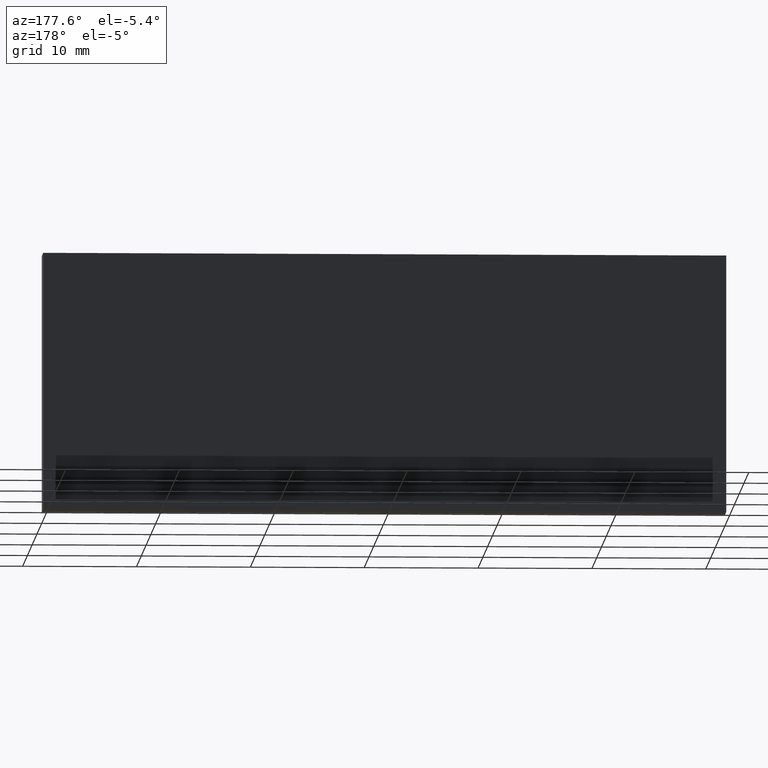
[diagram: clean part render]
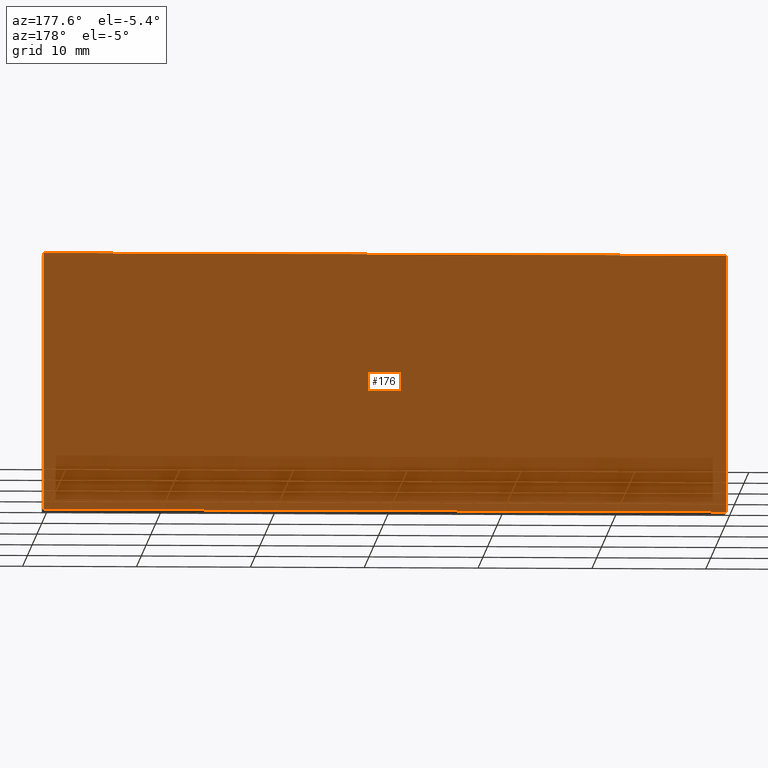
[diagram: same view with one face highlighted and labeled with its STEP entity id]
A machine part, auxiliary view. The second image highlights one B-rep face of the part: STEP entity #176.
In plain terms, the highlighted planar face has unit normal (-0, 1, 0).
Its self-contained STEP definition (entity closure, byte-faithful):
#4 = CARTESIAN_POINT ( 'NONE',  ( 30.00000000000000000, 3.000000000000000000, -11.29999999999999900 ) ) ;
#6 = VERTEX_POINT ( 'NONE', #4 ) ;
#7 = VERTEX_POINT ( 'NONE', #18 ) ;
#10 = CARTESIAN_POINT ( 'NONE',  ( 30.00000000000000000, 3.000000000000000000, 11.29999999999999900 ) ) ;
#11 = CARTESIAN_POINT ( 'NONE',  ( 30.00000000000000000, 3.000000000000000000, -11.29999999999999900 ) ) ;
#16 = VERTEX_POINT ( 'NONE', #17 ) ;
#17 = CARTESIAN_POINT ( 'NONE',  ( -30.00000000000000000, 3.000000000000000000, 11.29999999999999900 ) ) ;
#18 = CARTESIAN_POINT ( 'NONE',  ( -30.00000000000000000, 3.000000000000000000, -11.29999999999999900 ) ) ;
#24 = VERTEX_POINT ( 'NONE', #10 ) ;
#37 = LINE ( 'NONE', #11, #55 ) ;
#51 = FACE_OUTER_BOUND ( 'NONE', #118, .T. ) ;
#52 = LINE ( 'NONE', #233, #53 ) ;
#53 = VECTOR ( 'NONE', #207, 1000.000000000000000 ) ;
#55 = VECTOR ( 'NONE', #214, 1000.000000000000000 ) ;
#56 = LINE ( 'NONE', #212, #96 ) ;
#63 = ORIENTED_EDGE ( 'NONE', *, *, #153, .T. ) ;
#65 = ORIENTED_EDGE ( 'NONE', *, *, #156, .T. ) ;
#68 = ORIENTED_EDGE ( 'NONE', *, *, #160, .T. ) ;
#74 = LINE ( 'NONE', #217, #75 ) ;
#75 = VECTOR ( 'NONE', #215, 1000.000000000000000 ) ;
#96 = VECTOR ( 'NONE', #201, 1000.000000000000000 ) ;
#113 = ORIENTED_EDGE ( 'NONE', *, *, #142, .T. ) ;
#118 = EDGE_LOOP ( 'NONE', ( #63, #113, #68, #65 ) ) ;
#140 = AXIS2_PLACEMENT_3D ( 'NONE', #202, #203, #246 ) ;
#142 = EDGE_CURVE ( 'NONE', #6, #7, #37, .T. ) ;
#153 = EDGE_CURVE ( 'NONE', #24, #6, #52, .T. ) ;
#156 = EDGE_CURVE ( 'NONE', #16, #24, #74, .T. ) ;
#160 = EDGE_CURVE ( 'NONE', #7, #16, #56, .T. ) ;
#176 = ADVANCED_FACE ( 'NONE', ( #51 ), #192, .T. ) ;
#192 = PLANE ( 'NONE',  #140 ) ;
#201 = DIRECTION ( 'NONE',  ( -0.0000000000000000000, -0.0000000000000000000, 1.000000000000000000 ) ) ;
#202 = CARTESIAN_POINT ( 'NONE',  ( 0.0000000000000000000, 3.000000000000000000, 0.0000000000000000000 ) ) ;
#203 = DIRECTION ( 'NONE',  ( -0.0000000000000000000, 1.000000000000000000, 0.0000000000000000000 ) ) ;
#207 = DIRECTION ( 'NONE',  ( -0.0000000000000000000, -0.0000000000000000000, -1.000000000000000000 ) ) ;
#212 = CARTESIAN_POINT ( 'NONE',  ( -30.00000000000000000, 3.000000000000000000, -11.29999999999999900 ) ) ;
#214 = DIRECTION ( 'NONE',  ( -1.000000000000000000, -0.0000000000000000000, 0.0000000000000000000 ) ) ;
#215 = DIRECTION ( 'NONE',  ( 1.000000000000000000, -0.0000000000000000000, 0.0000000000000000000 ) ) ;
#217 = CARTESIAN_POINT ( 'NONE',  ( -30.00000000000000000, 3.000000000000000000, 11.29999999999999900 ) ) ;
#233 = CARTESIAN_POINT ( 'NONE',  ( 30.00000000000000000, 3.000000000000000000, 11.29999999999999900 ) ) ;
#246 = DIRECTION ( 'NONE',  ( 0.0000000000000000000, -0.0000000000000000000, 1.000000000000000000 ) ) ;